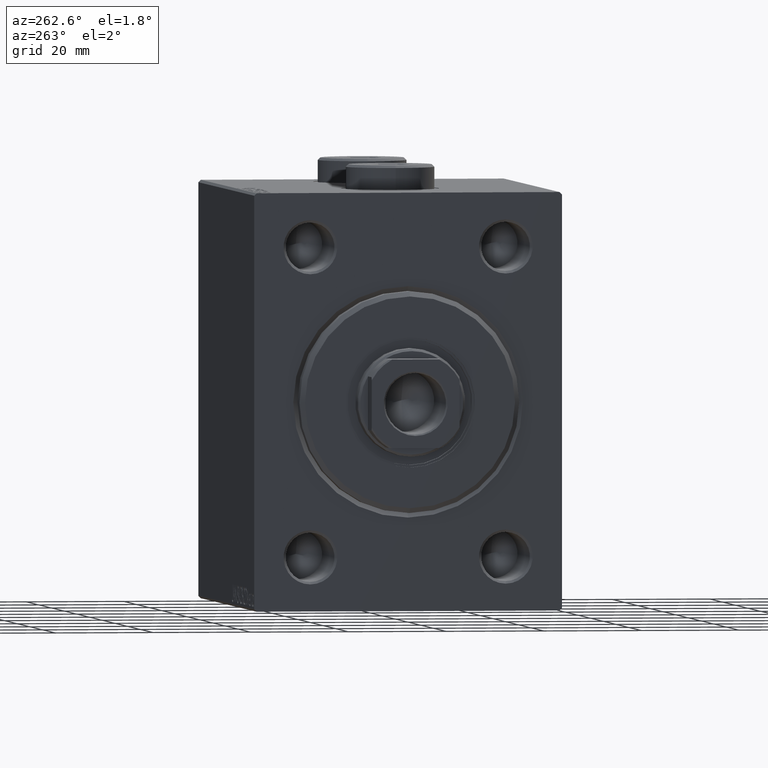
[diagram: clean part render]
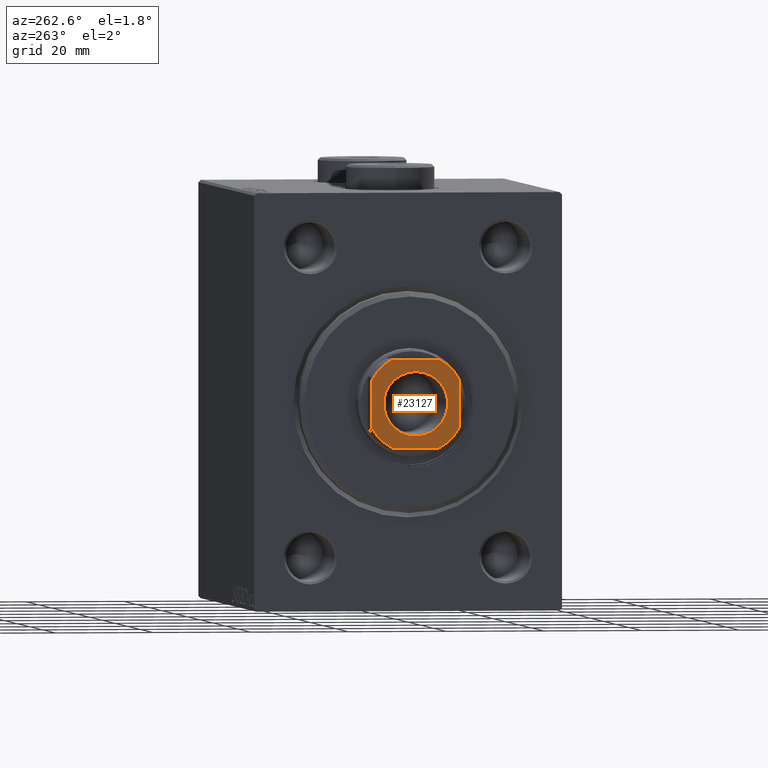
[diagram: same view with one face highlighted and labeled with its STEP entity id]
A machine part, auxiliary view. The second image highlights one B-rep face of the part: STEP entity #23127.
In plain terms, the highlighted planar face has unit normal (-1, 0, 0).
Its self-contained STEP definition (entity closure, byte-faithful):
#490 = PLANE ( 'NONE',  #26681 ) ;
#1047 = VECTOR ( 'NONE', #4640, 1000.000000000000000 ) ;
#1101 = EDGE_CURVE ( 'NONE', #30461, #37213, #6048, .T. ) ;
#1391 = VERTEX_POINT ( 'NONE', #16997 ) ;
#1541 = VERTEX_POINT ( 'NONE', #1972 ) ;
#1972 = CARTESIAN_POINT ( 'NONE',  ( -8.999999999999998224, -4.799999999999960743, 88.00000000000000000 ) ) ;
#2117 = EDGE_CURVE ( 'NONE', #1391, #1541, #7867, .T. ) ;
#2163 = CIRCLE ( 'NONE', #41908, 10.19999999999998863 ) ;
#2298 = EDGE_CURVE ( 'NONE', #1541, #30461, #17238, .T. ) ;
#2417 = CARTESIAN_POINT ( 'NONE',  ( 8.999999999999998224, 4.799999999999978506, 88.00000000000000000 ) ) ;
#4385 = LINE ( 'NONE', #15218, #37105 ) ;
#4640 = DIRECTION ( 'NONE',  ( 1.927470528863119049E-16, -1.000000000000000000, 0.000000000000000000 ) ) ;
#5215 = VERTEX_POINT ( 'NONE', #10966 ) ;
#5597 = ORIENTED_EDGE ( 'NONE', *, *, #31724, .T. ) ;
#6048 = LINE ( 'NONE', #20124, #13506 ) ;
#6266 = CARTESIAN_POINT ( 'NONE',  ( 8.999999999999998224, 8.999999999999998224, 88.00000000000000000 ) ) ;
#7867 = LINE ( 'NONE', #31850, #1047 ) ;
#7947 = DIRECTION ( 'NONE',  ( 1.000000000000000000, 0.000000000000000000, 0.000000000000000000 ) ) ;
#8403 = DIRECTION ( 'NONE',  ( 0.000000000000000000, -0.000000000000000000, -1.000000000000000000 ) ) ;
#8461 = DIRECTION ( 'NONE',  ( -0.000000000000000000, 0.000000000000000000, 1.000000000000000000 ) ) ;
#8837 = ORIENTED_EDGE ( 'NONE', *, *, #1101, .T. ) ;
#9031 = CIRCLE ( 'NONE', #33352, 10.20000000000000462 ) ;
#9210 = CARTESIAN_POINT ( 'NONE',  ( 6.550000000000000711, 0.000000000000000000, 88.00000000000000000 ) ) ;
#9853 = DIRECTION ( 'NONE',  ( -0.000000000000000000, 0.000000000000000000, 1.000000000000000000 ) ) ;
#10268 = DIRECTION ( 'NONE',  ( -0.000000000000000000, 0.000000000000000000, 1.000000000000000000 ) ) ;
#10310 = CARTESIAN_POINT ( 'NONE',  ( 0.000000000000000000, 0.000000000000000000, 88.00000000000000000 ) ) ;
#10869 = FACE_BOUND ( 'NONE', #12655, .T. ) ;
#10966 = CARTESIAN_POINT ( 'NONE',  ( -6.550000000000000711, 8.021436534415164234E-16, 88.00000000000000000 ) ) ;
#12556 = CARTESIAN_POINT ( 'NONE',  ( 0.000000000000000000, 0.000000000000000000, 88.00000000000000000 ) ) ;
#12655 = EDGE_LOOP ( 'NONE', ( #45580, #5597 ) ) ;
#13087 = ORIENTED_EDGE ( 'NONE', *, *, #2117, .T. ) ;
#13259 = EDGE_LOOP ( 'NONE', ( #17474, #19027, #29950, #29424, #13087, #16127, #8837, #37168 ) ) ;
#13506 = VECTOR ( 'NONE', #13649, 1000.000000000000000 ) ;
#13649 = DIRECTION ( 'NONE',  ( 1.000000000000000000, 0.000000000000000000, 0.000000000000000000 ) ) ;
#14059 = VERTEX_POINT ( 'NONE', #43183 ) ;
#14734 = EDGE_CURVE ( 'NONE', #31930, #31147, #2163, .T. ) ;
#15218 = CARTESIAN_POINT ( 'NONE',  ( -9.000000000000001776, 8.999999999999998224, 88.00000000000000000 ) ) ;
#15235 = DIRECTION ( 'NONE',  ( 1.000000000000000000, 0.000000000000000000, 0.000000000000000000 ) ) ;
#15470 = DIRECTION ( 'NONE',  ( -0.000000000000000000, 0.000000000000000000, 1.000000000000000000 ) ) ;
#16127 = ORIENTED_EDGE ( 'NONE', *, *, #2298, .T. ) ;
#16941 = CIRCLE ( 'NONE', #39008, 10.19999999999998863 ) ;
#16997 = CARTESIAN_POINT ( 'NONE',  ( -9.000000000000001776, 4.800000000000007816, 88.00000000000000000 ) ) ;
#17026 = EDGE_CURVE ( 'NONE', #37213, #37103, #16941, .T. ) ;
#17238 = CIRCLE ( 'NONE', #23865, 10.19999999999997975 ) ;
#17474 = ORIENTED_EDGE ( 'NONE', *, *, #18210, .T. ) ;
#18023 = FACE_OUTER_BOUND ( 'NONE', #13259, .T. ) ;
#18210 = EDGE_CURVE ( 'NONE', #37103, #31930, #27484, .T. ) ;
#19027 = ORIENTED_EDGE ( 'NONE', *, *, #14734, .T. ) ;
#20124 = CARTESIAN_POINT ( 'NONE',  ( -8.999999999999998224, -9.000000000000001776, 88.00000000000000000 ) ) ;
#20197 = AXIS2_PLACEMENT_3D ( 'NONE', #37727, #23921, #34728 ) ;
#21117 = VERTEX_POINT ( 'NONE', #9210 ) ;
#23127 = ADVANCED_FACE ( 'NONE', ( #10869, #18023 ), #490, .T. ) ;
#23310 = CARTESIAN_POINT ( 'NONE',  ( 9.000000000000001776, -4.799999999999974065, 88.00000000000000000 ) ) ;
#23454 = DIRECTION ( 'NONE',  ( 1.000000000000000000, 0.000000000000000000, 0.000000000000000000 ) ) ;
#23634 = VECTOR ( 'NONE', #35072, 1000.000000000000000 ) ;
#23865 = AXIS2_PLACEMENT_3D ( 'NONE', #26912, #8461, #23454 ) ;
#23902 = DIRECTION ( 'NONE',  ( 1.000000000000000000, 0.000000000000000000, 0.000000000000000000 ) ) ;
#23921 = DIRECTION ( 'NONE',  ( 0.000000000000000000, -0.000000000000000000, -1.000000000000000000 ) ) ;
#24160 = DIRECTION ( 'NONE',  ( 1.000000000000000000, 0.000000000000000000, 0.000000000000000000 ) ) ;
#24860 = EDGE_CURVE ( 'NONE', #21117, #5215, #34869, .T. ) ;
#26681 = AXIS2_PLACEMENT_3D ( 'NONE', #28853, #15470, #15235 ) ;
#26912 = CARTESIAN_POINT ( 'NONE',  ( 0.000000000000000000, 0.000000000000000000, 88.00000000000000000 ) ) ;
#27484 = LINE ( 'NONE', #6266, #23634 ) ;
#28225 = AXIS2_PLACEMENT_3D ( 'NONE', #12556, #8403, #7947 ) ;
#28238 = EDGE_CURVE ( 'NONE', #14059, #1391, #9031, .T. ) ;
#28853 = CARTESIAN_POINT ( 'NONE',  ( 0.000000000000000000, 0.000000000000000000, 88.00000000000000000 ) ) ;
#29282 = DIRECTION ( 'NONE',  ( -1.000000000000000000, -0.000000000000000000, -0.000000000000000000 ) ) ;
#29424 = ORIENTED_EDGE ( 'NONE', *, *, #28238, .T. ) ;
#29950 = ORIENTED_EDGE ( 'NONE', *, *, #31254, .T. ) ;
#30007 = DIRECTION ( 'NONE',  ( -0.000000000000000000, 0.000000000000000000, 1.000000000000000000 ) ) ;
#30016 = CARTESIAN_POINT ( 'NONE',  ( 4.799999999999979394, 8.999999999999998224, 88.00000000000000000 ) ) ;
#30461 = VERTEX_POINT ( 'NONE', #40785 ) ;
#31147 = VERTEX_POINT ( 'NONE', #30016 ) ;
#31254 = EDGE_CURVE ( 'NONE', #31147, #14059, #4385, .T. ) ;
#31724 = EDGE_CURVE ( 'NONE', #5215, #21117, #40069, .T. ) ;
#31850 = CARTESIAN_POINT ( 'NONE',  ( -9.000000000000001776, 8.999999999999998224, 88.00000000000000000 ) ) ;
#31930 = VERTEX_POINT ( 'NONE', #2417 ) ;
#33352 = AXIS2_PLACEMENT_3D ( 'NONE', #43155, #30007, #36247 ) ;
#33676 = CARTESIAN_POINT ( 'NONE',  ( 4.799999999999974065, -9.000000000000001776, 88.00000000000000000 ) ) ;
#34728 = DIRECTION ( 'NONE',  ( 1.000000000000000000, 0.000000000000000000, 0.000000000000000000 ) ) ;
#34869 = CIRCLE ( 'NONE', #28225, 6.550000000000000711 ) ;
#35072 = DIRECTION ( 'NONE',  ( -1.927470528863119049E-16, 1.000000000000000000, -0.000000000000000000 ) ) ;
#36247 = DIRECTION ( 'NONE',  ( 1.000000000000000000, 0.000000000000000000, 0.000000000000000000 ) ) ;
#37103 = VERTEX_POINT ( 'NONE', #23310 ) ;
#37105 = VECTOR ( 'NONE', #29282, 1000.000000000000000 ) ;
#37168 = ORIENTED_EDGE ( 'NONE', *, *, #17026, .T. ) ;
#37213 = VERTEX_POINT ( 'NONE', #33676 ) ;
#37727 = CARTESIAN_POINT ( 'NONE',  ( 0.000000000000000000, 0.000000000000000000, 88.00000000000000000 ) ) ;
#37944 = CARTESIAN_POINT ( 'NONE',  ( 0.000000000000000000, 0.000000000000000000, 88.00000000000000000 ) ) ;
#39008 = AXIS2_PLACEMENT_3D ( 'NONE', #37944, #10268, #23902 ) ;
#40069 = CIRCLE ( 'NONE', #20197, 6.550000000000000711 ) ;
#40785 = CARTESIAN_POINT ( 'NONE',  ( -4.799999999999956302, -9.000000000000001776, 88.00000000000000000 ) ) ;
#41908 = AXIS2_PLACEMENT_3D ( 'NONE', #10310, #9853, #24160 ) ;
#43155 = CARTESIAN_POINT ( 'NONE',  ( 0.000000000000000000, 0.000000000000000000, 88.00000000000000000 ) ) ;
#43183 = CARTESIAN_POINT ( 'NONE',  ( -4.800000000000012257, 8.999999999999998224, 88.00000000000000000 ) ) ;
#45580 = ORIENTED_EDGE ( 'NONE', *, *, #24860, .T. ) ;